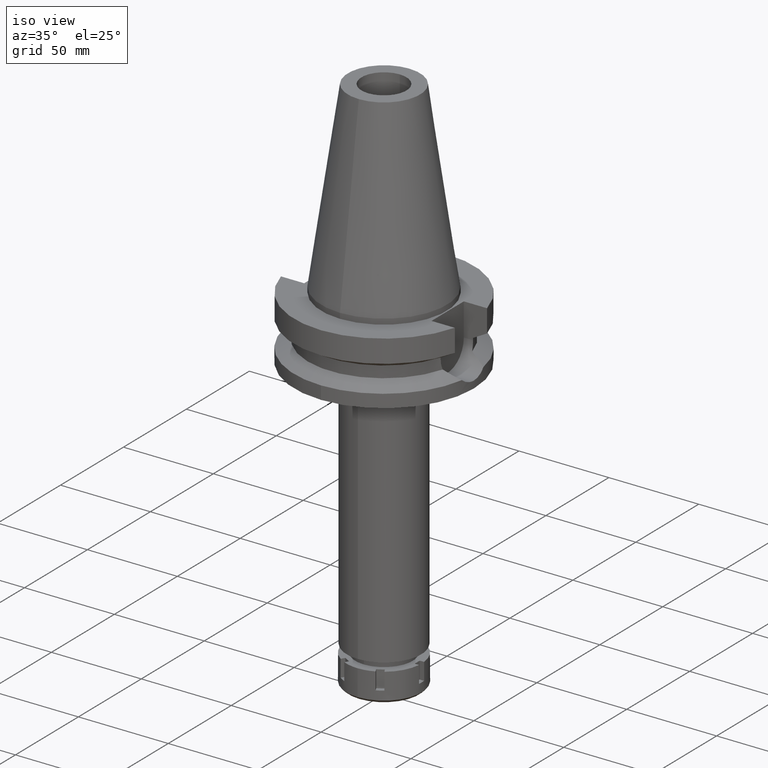
[diagram: clean part render]
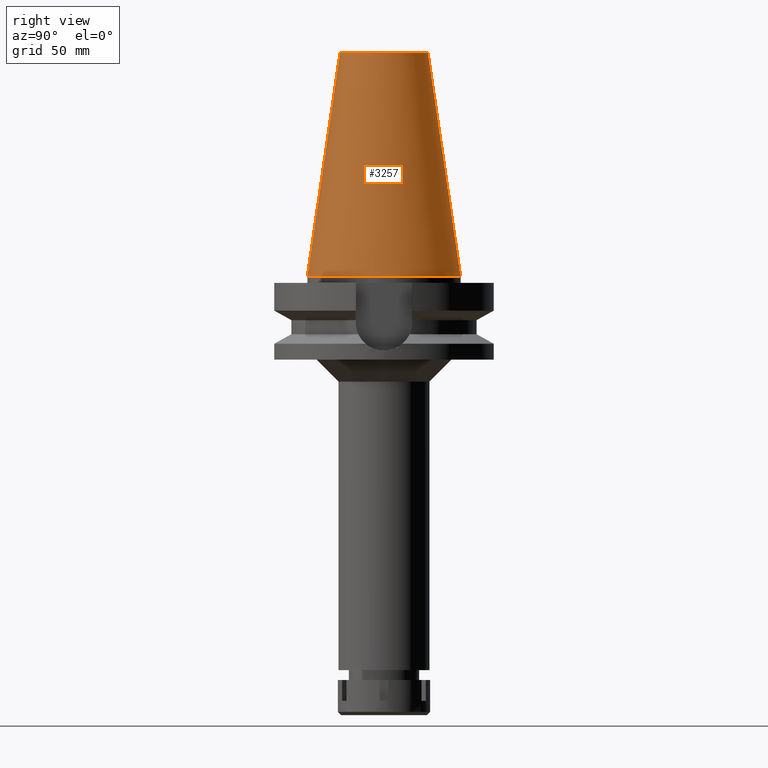
[diagram: tour spotlight — one face highlighted and labeled with its STEP entity id]
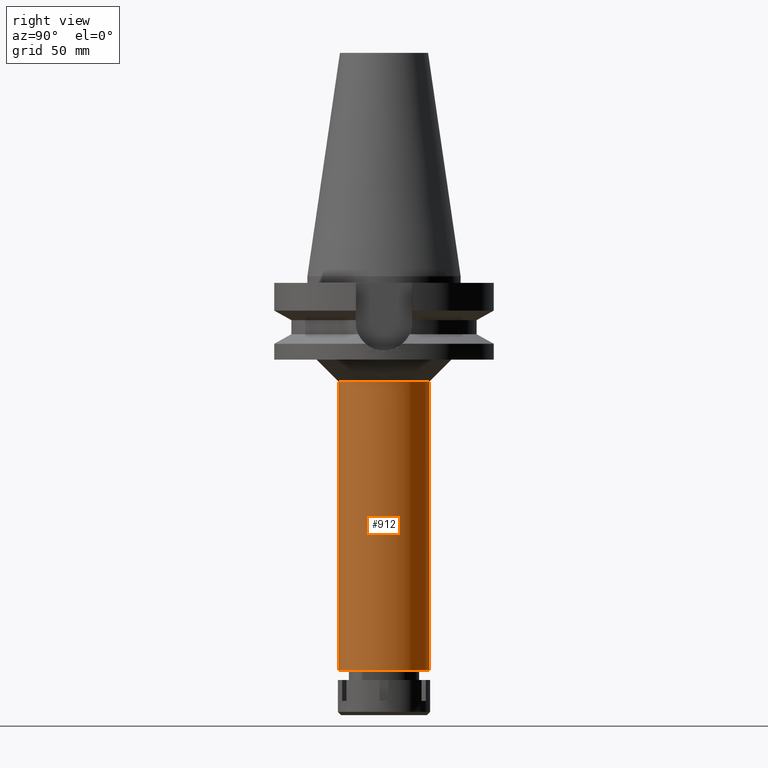
[diagram: tour spotlight — one face highlighted and labeled with its STEP entity id]
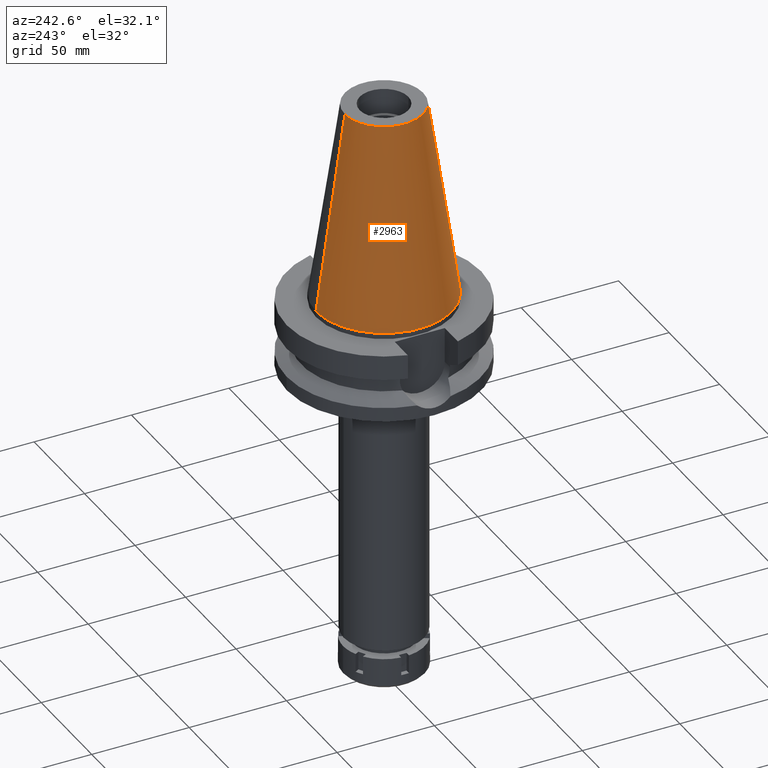
[diagram: tour spotlight — one face highlighted and labeled with its STEP entity id]
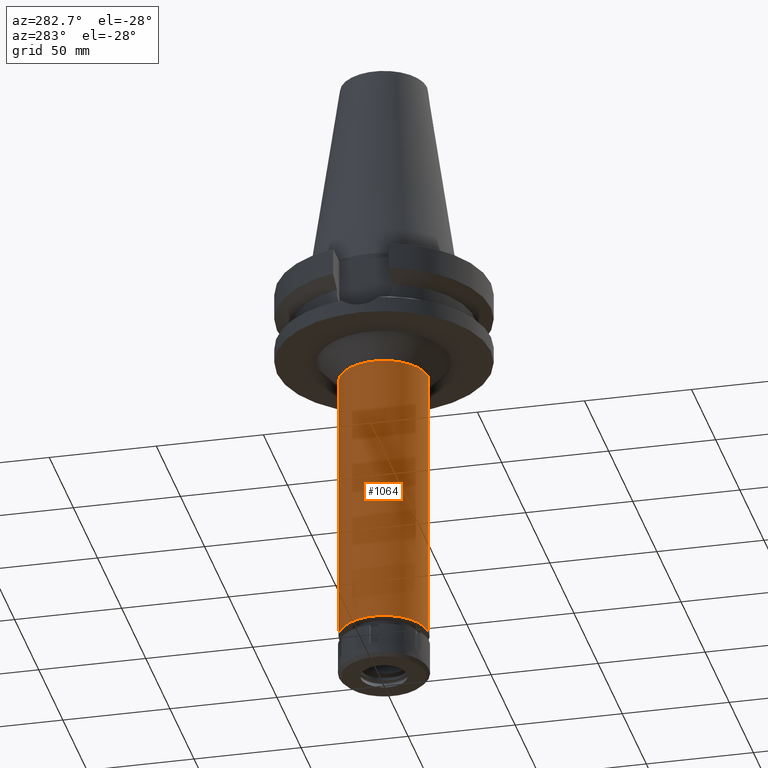
[diagram: tour spotlight — one face highlighted and labeled with its STEP entity id]
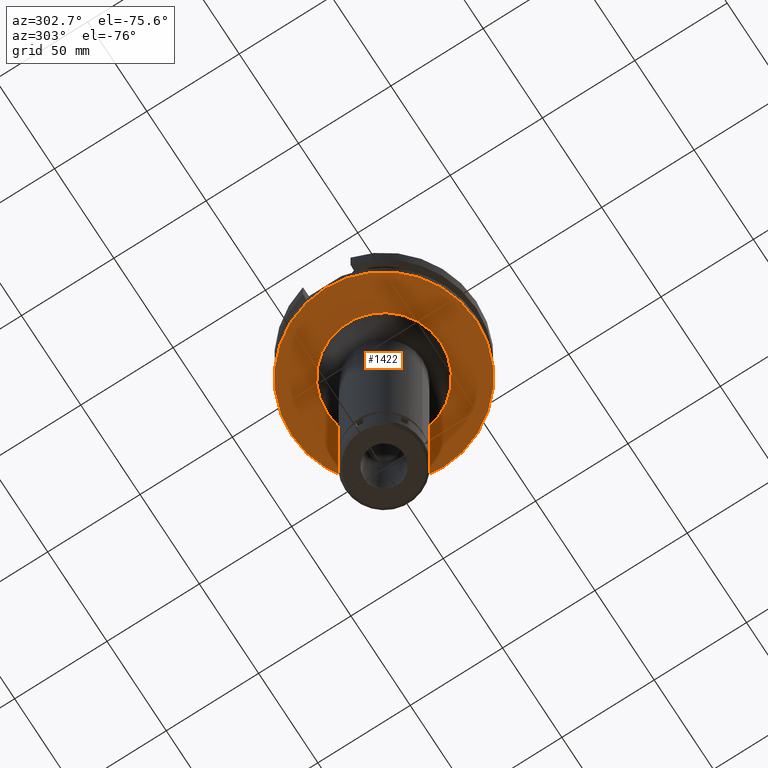
[diagram: tour spotlight — one face highlighted and labeled with its STEP entity id]
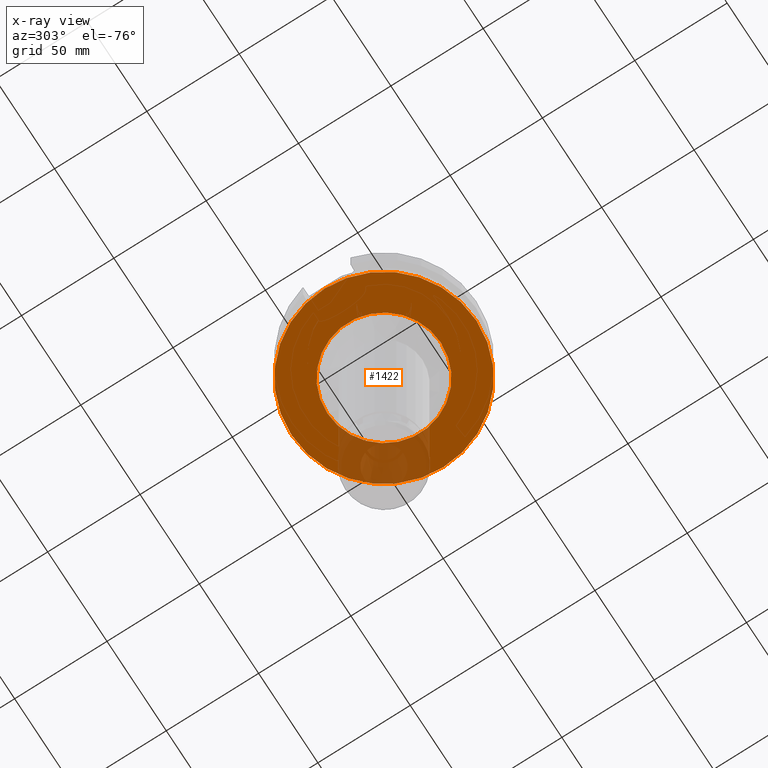
[diagram: x-ray of the same camera — body ghosted, this tour face saturated]
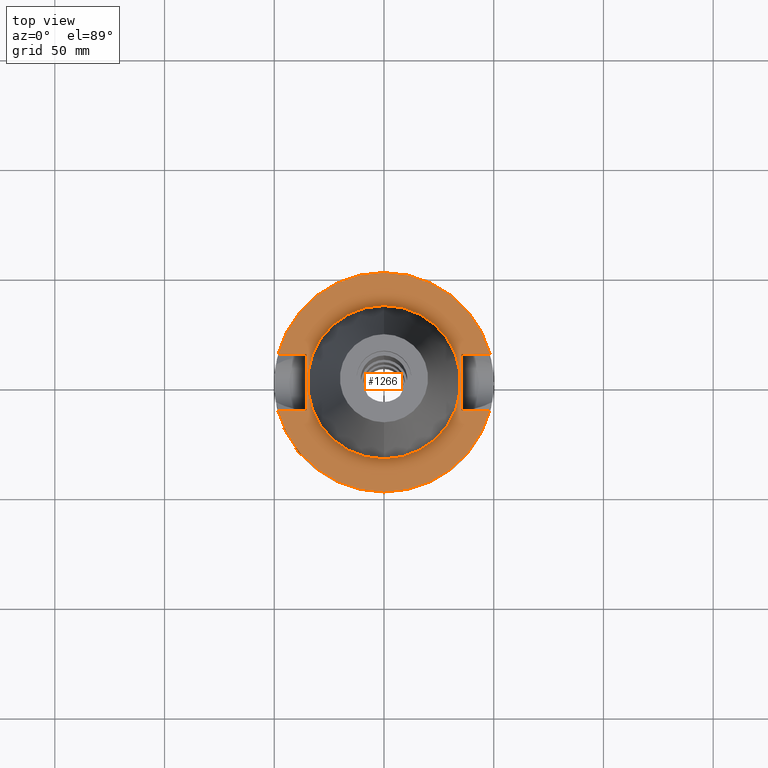
[diagram: tour spotlight — one face highlighted and labeled with its STEP entity id]
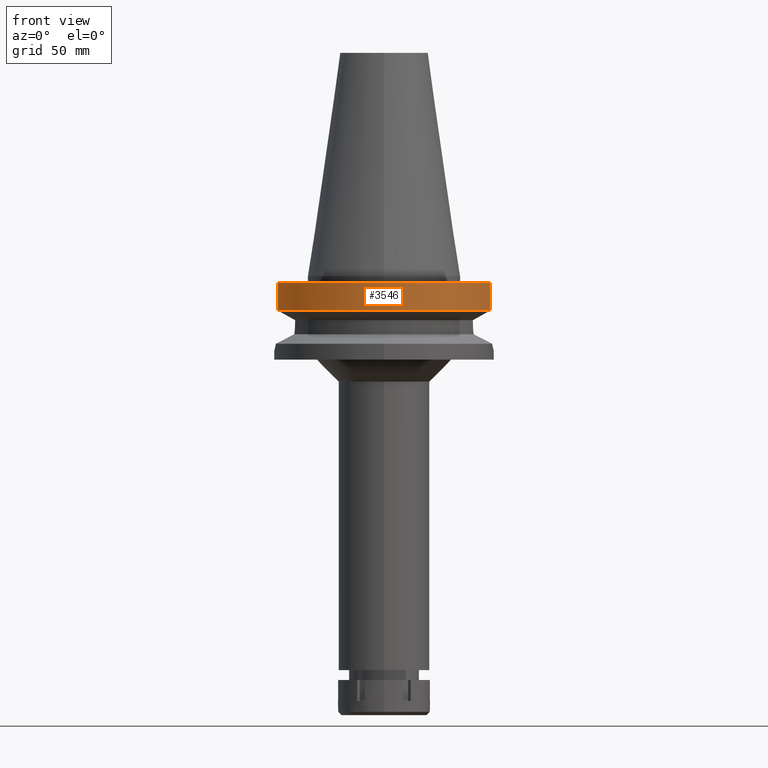
[diagram: tour spotlight — one face highlighted and labeled with its STEP entity id]
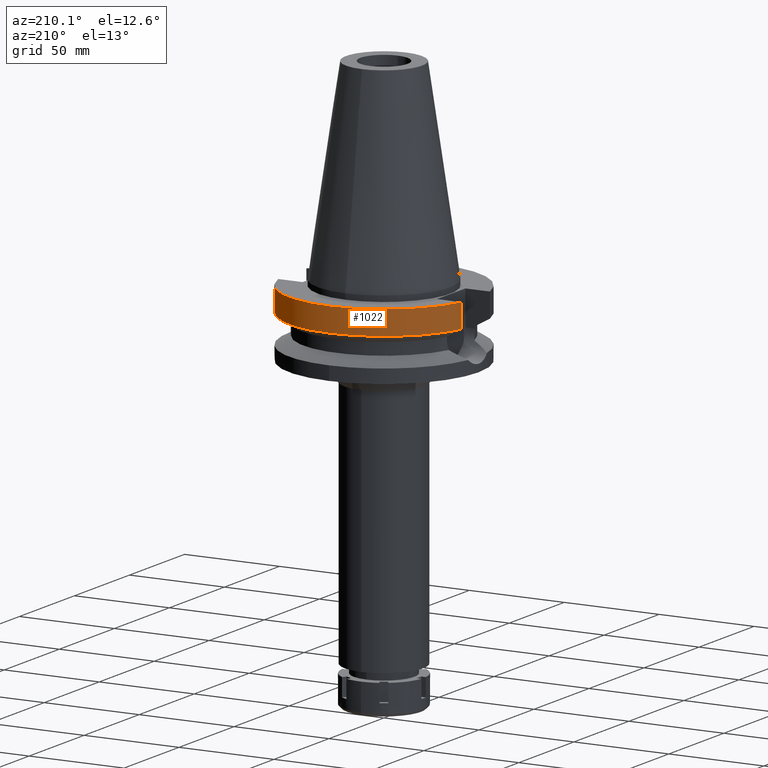
[diagram: tour spotlight — one face highlighted and labeled with its STEP entity id]
A machine part: a face-by-face anatomy tour. The part has 93 B-rep faces; the first image is the clean iso view, then the 8 largest visible faces are spotlighted one at a time (largest first), each with its STEP entity span.

Face 1 — right view, entity #3257. In plain terms, the highlighted conical surface has half-angle 8.297 deg.
Definition (entity closure, byte-faithful):
#375 = DIRECTION ( 'NONE',  ( 0.0000000000000000000, 1.000000000000000000, 0.0000000000000000000 ) ) ;
#429 = CARTESIAN_POINT ( 'NONE',  ( 0.0000000000000000000, -20.07942971896000017, 101.7999999999999972 ) ) ;
#564 = EDGE_CURVE ( 'NONE', #2641, #1976, #1144, .T. ) ;
#708 = CARTESIAN_POINT ( 'NONE',  ( 0.0000000000000000000, 20.07942971896000017, 101.7999999999999972 ) ) ;
#740 = VERTEX_POINT ( 'NONE', #1268 ) ;
#802 = CARTESIAN_POINT ( 'NONE',  ( 0.0000000000000000000, 20.07942971896000017, 101.7999999999999972 ) ) ;
#896 = ORIENTED_EDGE ( 'NONE', *, *, #1407, .F. ) ;
#1103 = ORIENTED_EDGE ( 'NONE', *, *, #564, .T. ) ;
#1134 = AXIS2_PLACEMENT_3D ( 'NONE', #3509, #1509, #375 ) ;
#1144 = CIRCLE ( 'NONE', #2562, 20.07942971896000017 ) ;
#1159 = EDGE_LOOP ( 'NONE', ( #1103, #2582, #896, #1174 ) ) ;
#1174 = ORIENTED_EDGE ( 'NONE', *, *, #2392, .F. ) ;
#1246 = DIRECTION ( 'NONE',  ( 0.0000000000000000000, -1.000000000000000000, 0.0000000000000000000 ) ) ;
#1268 = CARTESIAN_POINT ( 'NONE',  ( 0.0000000000000000000, -34.92499999999999716, 5.400124791776999712E-13 ) ) ;
#1301 = CARTESIAN_POINT ( 'NONE',  ( 0.0000000000000000000, 34.92499999999999716, 5.400124791776999712E-13 ) ) ;
#1407 = EDGE_CURVE ( 'NONE', #1888, #740, #2729, .T. ) ;
#1509 = DIRECTION ( 'NONE',  ( 0.0000000000000000000, 0.0000000000000000000, -1.000000000000000000 ) ) ;
#1735 = VECTOR ( 'NONE', #2684, 1000.000000000000114 ) ;
#1816 = DIRECTION ( 'NONE',  ( 0.0000000000000000000, 1.000000000000000000, 0.0000000000000000000 ) ) ;
#1854 = LINE ( 'NONE', #429, #1735 ) ;
#1863 = CARTESIAN_POINT ( 'NONE',  ( 0.0000000000000000000, 1.847992019912999597E-14, 50.89999999999999858 ) ) ;
#1888 = VERTEX_POINT ( 'NONE', #1301 ) ;
#1919 = VECTOR ( 'NONE', #3320, 1000.000000000000114 ) ;
#1928 = EDGE_CURVE ( 'NONE', #1976, #740, #1854, .T. ) ;
#1976 = VERTEX_POINT ( 'NONE', #3563 ) ;
#2245 = AXIS2_PLACEMENT_3D ( 'NONE', #1863, #3565, #1246 ) ;
#2392 = EDGE_CURVE ( 'NONE', #2641, #1888, #3597, .T. ) ;
#2562 = AXIS2_PLACEMENT_3D ( 'NONE', #2952, #2707, #1816 ) ;
#2582 = ORIENTED_EDGE ( 'NONE', *, *, #1928, .T. ) ;
#2596 = CONICAL_SURFACE ( 'NONE', #2245, 27.50221485948000222, 0.1448099680379422438 ) ;
#2641 = VERTEX_POINT ( 'NONE', #802 ) ;
#2684 = DIRECTION ( 'NONE',  ( 0.0000000000000000000, -0.1443043893538948075, -0.9895333461855641000 ) ) ;
#2707 = DIRECTION ( 'NONE',  ( 0.0000000000000000000, 0.0000000000000000000, -1.000000000000000000 ) ) ;
#2729 = CIRCLE ( 'NONE', #1134, 34.92499999999999716 ) ;
#2952 = CARTESIAN_POINT ( 'NONE',  ( 0.0000000000000000000, 1.847992019912999597E-14, 101.7999999999999972 ) ) ;
#2975 = FACE_OUTER_BOUND ( 'NONE', #1159, .T. ) ;
#3257 = ADVANCED_FACE ( 'NONE', ( #2975 ), #2596, .T. ) ;
#3320 = DIRECTION ( 'NONE',  ( 0.0000000000000000000, 0.1443043893538948075, -0.9895333461855641000 ) ) ;
#3509 = CARTESIAN_POINT ( 'NONE',  ( 0.0000000000000000000, 1.847992019912999597E-14, 3.979039320256999774E-13 ) ) ;
#3563 = CARTESIAN_POINT ( 'NONE',  ( 0.0000000000000000000, -20.07942971896000017, 101.7999999999999972 ) ) ;
#3565 = DIRECTION ( 'NONE',  ( 0.0000000000000000000, 0.0000000000000000000, -1.000000000000000000 ) ) ;
#3597 = LINE ( 'NONE', #708, #1919 ) ;

Face 2 — right view, entity #912. In plain terms, the highlighted cylindrical surface (partial cylindrical patch) has radius 20.75 mm, axis along (0, 0, -1).
Definition (entity closure, byte-faithful):
#128 = EDGE_LOOP ( 'NONE', ( #595, #258, #390, #2007 ) ) ;
#258 = ORIENTED_EDGE ( 'NONE', *, *, #3478, .T. ) ;
#390 = ORIENTED_EDGE ( 'NONE', *, *, #1744, .T. ) ;
#595 = ORIENTED_EDGE ( 'NONE', *, *, #660, .T. ) ;
#611 = CARTESIAN_POINT ( 'NONE',  ( 0.0000000000000000000, 20.75000000000000000, -48.00000000000000000 ) ) ;
#628 = DIRECTION ( 'NONE',  ( 0.0000000000000000000, 0.0000000000000000000, -1.000000000000000000 ) ) ;
#660 = EDGE_CURVE ( 'NONE', #3239, #2019, #2915, .T. ) ;
#809 = DIRECTION ( 'NONE',  ( 0.0000000000000000000, 0.0000000000000000000, 1.000000000000000000 ) ) ;
#904 = LINE ( 'NONE', #611, #1833 ) ;
#912 = ADVANCED_FACE ( 'NONE', ( #2899 ), #1275, .T. ) ;
#1029 = CIRCLE ( 'NONE', #2741, 20.75000000000000000 ) ;
#1065 = DIRECTION ( 'NONE',  ( 0.0000000000000000000, 1.000000000000000000, 0.0000000000000000000 ) ) ;
#1085 = LINE ( 'NONE', #2508, #1603 ) ;
#1275 = CYLINDRICAL_SURFACE ( 'NONE', #3504, 20.75000000000000000 ) ;
#1344 = DIRECTION ( 'NONE',  ( 0.0000000000000000000, 0.0000000000000000000, -1.000000000000000000 ) ) ;
#1511 = CARTESIAN_POINT ( 'NONE',  ( 0.0000000000000000000, 2.651237855473999832E-14, 116.4899999999999949 ) ) ;
#1603 = VECTOR ( 'NONE', #1344, 1000.000000000000000 ) ;
#1744 = EDGE_CURVE ( 'NONE', #2682, #3395, #1029, .T. ) ;
#1833 = VECTOR ( 'NONE', #628, 1000.000000000000000 ) ;
#1997 = DIRECTION ( 'NONE',  ( 0.0000000000000000000, -1.000000000000000000, 0.0000000000000000000 ) ) ;
#2007 = ORIENTED_EDGE ( 'NONE', *, *, #3183, .F. ) ;
#2019 = VERTEX_POINT ( 'NONE', #3129 ) ;
#2242 = CARTESIAN_POINT ( 'NONE',  ( 0.0000000000000000000, 0.0000000000000000000, -48.00000000000000000 ) ) ;
#2263 = CARTESIAN_POINT ( 'NONE',  ( 0.0000000000000000000, 2.651237855473999832E-14, -179.5000000000000000 ) ) ;
#2408 = CARTESIAN_POINT ( 'NONE',  ( 0.0000000000000000000, 20.75000000000000000, -179.5000000000000000 ) ) ;
#2508 = CARTESIAN_POINT ( 'NONE',  ( 0.0000000000000000000, -20.75000000000000000, -48.00000000000000000 ) ) ;
#2682 = VERTEX_POINT ( 'NONE', #3216 ) ;
#2741 = AXIS2_PLACEMENT_3D ( 'NONE', #2263, #809, #1997 ) ;
#2899 = FACE_OUTER_BOUND ( 'NONE', #128, .T. ) ;
#2915 = CIRCLE ( 'NONE', #3445, 20.75000000000000000 ) ;
#3090 = DIRECTION ( 'NONE',  ( 0.0000000000000000000, 0.0000000000000000000, -1.000000000000000000 ) ) ;
#3129 = CARTESIAN_POINT ( 'NONE',  ( 0.0000000000000000000, -20.75000000000000000, -48.00000000000000000 ) ) ;
#3183 = EDGE_CURVE ( 'NONE', #3239, #3395, #904, .T. ) ;
#3216 = CARTESIAN_POINT ( 'NONE',  ( 0.0000000000000000000, -20.75000000000000000, -179.5000000000000000 ) ) ;
#3239 = VERTEX_POINT ( 'NONE', #3482 ) ;
#3395 = VERTEX_POINT ( 'NONE', #2408 ) ;
#3445 = AXIS2_PLACEMENT_3D ( 'NONE', #2242, #3090, #1065 ) ;
#3455 = DIRECTION ( 'NONE',  ( 0.0000000000000000000, -1.000000000000000000, 0.0000000000000000000 ) ) ;
#3478 = EDGE_CURVE ( 'NONE', #2019, #2682, #1085, .T. ) ;
#3482 = CARTESIAN_POINT ( 'NONE',  ( 0.0000000000000000000, 20.75000000000000000, -48.00000000000000000 ) ) ;
#3488 = DIRECTION ( 'NONE',  ( 0.0000000000000000000, 0.0000000000000000000, -1.000000000000000000 ) ) ;
#3504 = AXIS2_PLACEMENT_3D ( 'NONE', #1511, #3488, #3455 ) ;

Face 3 — auxiliary view, entity #2963. In plain terms, the highlighted conical surface has half-angle 8.297 deg.
Definition (entity closure, byte-faithful):
#25 = DIRECTION ( 'NONE',  ( 0.0000000000000000000, 0.0000000000000000000, -1.000000000000000000 ) ) ;
#114 = DIRECTION ( 'NONE',  ( 0.0000000000000000000, -1.000000000000000000, 0.0000000000000000000 ) ) ;
#125 = EDGE_CURVE ( 'NONE', #1976, #2641, #234, .T. ) ;
#219 = EDGE_LOOP ( 'NONE', ( #1312, #2419, #877, #1736 ) ) ;
#234 = CIRCLE ( 'NONE', #2312, 20.07942971896000017 ) ;
#429 = CARTESIAN_POINT ( 'NONE',  ( 0.0000000000000000000, -20.07942971896000017, 101.7999999999999972 ) ) ;
#454 = AXIS2_PLACEMENT_3D ( 'NONE', #910, #2094, #114 ) ;
#708 = CARTESIAN_POINT ( 'NONE',  ( 0.0000000000000000000, 20.07942971896000017, 101.7999999999999972 ) ) ;
#740 = VERTEX_POINT ( 'NONE', #1268 ) ;
#802 = CARTESIAN_POINT ( 'NONE',  ( 0.0000000000000000000, 20.07942971896000017, 101.7999999999999972 ) ) ;
#877 = ORIENTED_EDGE ( 'NONE', *, *, #125, .T. ) ;
#910 = CARTESIAN_POINT ( 'NONE',  ( 0.0000000000000000000, 1.847992019912999597E-14, 3.979039320256999774E-13 ) ) ;
#938 = CARTESIAN_POINT ( 'NONE',  ( 0.0000000000000000000, 1.847992019912999597E-14, 101.7999999999999972 ) ) ;
#1071 = DIRECTION ( 'NONE',  ( 0.0000000000000000000, -1.000000000000000000, 0.0000000000000000000 ) ) ;
#1184 = AXIS2_PLACEMENT_3D ( 'NONE', #1276, #3529, #1071 ) ;
#1268 = CARTESIAN_POINT ( 'NONE',  ( 0.0000000000000000000, -34.92499999999999716, 5.400124791776999712E-13 ) ) ;
#1276 = CARTESIAN_POINT ( 'NONE',  ( 0.0000000000000000000, 1.847992019912999597E-14, 50.89999999999999858 ) ) ;
#1301 = CARTESIAN_POINT ( 'NONE',  ( 0.0000000000000000000, 34.92499999999999716, 5.400124791776999712E-13 ) ) ;
#1312 = ORIENTED_EDGE ( 'NONE', *, *, #2826, .F. ) ;
#1735 = VECTOR ( 'NONE', #2684, 1000.000000000000114 ) ;
#1736 = ORIENTED_EDGE ( 'NONE', *, *, #2392, .T. ) ;
#1854 = LINE ( 'NONE', #429, #1735 ) ;
#1869 = FACE_OUTER_BOUND ( 'NONE', #219, .T. ) ;
#1888 = VERTEX_POINT ( 'NONE', #1301 ) ;
#1919 = VECTOR ( 'NONE', #3320, 1000.000000000000114 ) ;
#1928 = EDGE_CURVE ( 'NONE', #1976, #740, #1854, .T. ) ;
#1976 = VERTEX_POINT ( 'NONE', #3563 ) ;
#2094 = DIRECTION ( 'NONE',  ( 0.0000000000000000000, 0.0000000000000000000, -1.000000000000000000 ) ) ;
#2188 = CIRCLE ( 'NONE', #454, 34.92499999999999716 ) ;
#2312 = AXIS2_PLACEMENT_3D ( 'NONE', #938, #25, #2646 ) ;
#2392 = EDGE_CURVE ( 'NONE', #2641, #1888, #3597, .T. ) ;
#2419 = ORIENTED_EDGE ( 'NONE', *, *, #1928, .F. ) ;
#2641 = VERTEX_POINT ( 'NONE', #802 ) ;
#2646 = DIRECTION ( 'NONE',  ( 0.0000000000000000000, -1.000000000000000000, 0.0000000000000000000 ) ) ;
#2684 = DIRECTION ( 'NONE',  ( 0.0000000000000000000, -0.1443043893538948075, -0.9895333461855641000 ) ) ;
#2781 = CONICAL_SURFACE ( 'NONE', #1184, 27.50221485948000222, 0.1448099680379422438 ) ;
#2826 = EDGE_CURVE ( 'NONE', #740, #1888, #2188, .T. ) ;
#2963 = ADVANCED_FACE ( 'NONE', ( #1869 ), #2781, .T. ) ;
#3320 = DIRECTION ( 'NONE',  ( 0.0000000000000000000, 0.1443043893538948075, -0.9895333461855641000 ) ) ;
#3529 = DIRECTION ( 'NONE',  ( 0.0000000000000000000, 0.0000000000000000000, -1.000000000000000000 ) ) ;
#3563 = CARTESIAN_POINT ( 'NONE',  ( 0.0000000000000000000, -20.07942971896000017, 101.7999999999999972 ) ) ;
#3597 = LINE ( 'NONE', #708, #1919 ) ;

Face 4 — auxiliary view, entity #1064. In plain terms, the highlighted cylindrical surface (partial cylindrical patch) has radius 20.75 mm, axis along (0, 0, -1).
Definition (entity closure, byte-faithful):
#96 = EDGE_CURVE ( 'NONE', #3395, #2682, #1087, .T. ) ;
#141 = ORIENTED_EDGE ( 'NONE', *, *, #3183, .T. ) ;
#151 = DIRECTION ( 'NONE',  ( 0.0000000000000000000, 0.0000000000000000000, -1.000000000000000000 ) ) ;
#171 = CIRCLE ( 'NONE', #768, 20.75000000000000000 ) ;
#229 = EDGE_CURVE ( 'NONE', #2019, #3239, #171, .T. ) ;
#601 = EDGE_LOOP ( 'NONE', ( #1954, #1912, #2711, #141 ) ) ;
#611 = CARTESIAN_POINT ( 'NONE',  ( 0.0000000000000000000, 20.75000000000000000, -48.00000000000000000 ) ) ;
#628 = DIRECTION ( 'NONE',  ( 0.0000000000000000000, 0.0000000000000000000, -1.000000000000000000 ) ) ;
#724 = CARTESIAN_POINT ( 'NONE',  ( 0.0000000000000000000, 2.651237855473999832E-14, 116.4899999999999949 ) ) ;
#768 = AXIS2_PLACEMENT_3D ( 'NONE', #3020, #3542, #2192 ) ;
#904 = LINE ( 'NONE', #611, #1833 ) ;
#1064 = ADVANCED_FACE ( 'NONE', ( #3297 ), #2197, .T. ) ;
#1085 = LINE ( 'NONE', #2508, #1603 ) ;
#1087 = CIRCLE ( 'NONE', #2254, 20.75000000000000000 ) ;
#1344 = DIRECTION ( 'NONE',  ( 0.0000000000000000000, 0.0000000000000000000, -1.000000000000000000 ) ) ;
#1603 = VECTOR ( 'NONE', #1344, 1000.000000000000000 ) ;
#1668 = AXIS2_PLACEMENT_3D ( 'NONE', #724, #151, #1868 ) ;
#1833 = VECTOR ( 'NONE', #628, 1000.000000000000000 ) ;
#1868 = DIRECTION ( 'NONE',  ( 0.0000000000000000000, -1.000000000000000000, 0.0000000000000000000 ) ) ;
#1912 = ORIENTED_EDGE ( 'NONE', *, *, #3478, .F. ) ;
#1954 = ORIENTED_EDGE ( 'NONE', *, *, #96, .T. ) ;
#2019 = VERTEX_POINT ( 'NONE', #3129 ) ;
#2192 = DIRECTION ( 'NONE',  ( 0.0000000000000000000, -1.000000000000000000, 0.0000000000000000000 ) ) ;
#2197 = CYLINDRICAL_SURFACE ( 'NONE', #1668, 20.75000000000000000 ) ;
#2254 = AXIS2_PLACEMENT_3D ( 'NONE', #2580, #2295, #2592 ) ;
#2295 = DIRECTION ( 'NONE',  ( 0.0000000000000000000, 0.0000000000000000000, 1.000000000000000000 ) ) ;
#2408 = CARTESIAN_POINT ( 'NONE',  ( 0.0000000000000000000, 20.75000000000000000, -179.5000000000000000 ) ) ;
#2508 = CARTESIAN_POINT ( 'NONE',  ( 0.0000000000000000000, -20.75000000000000000, -48.00000000000000000 ) ) ;
#2580 = CARTESIAN_POINT ( 'NONE',  ( 0.0000000000000000000, 2.651237855473999832E-14, -179.5000000000000000 ) ) ;
#2592 = DIRECTION ( 'NONE',  ( 0.0000000000000000000, 1.000000000000000000, 0.0000000000000000000 ) ) ;
#2682 = VERTEX_POINT ( 'NONE', #3216 ) ;
#2711 = ORIENTED_EDGE ( 'NONE', *, *, #229, .T. ) ;
#3020 = CARTESIAN_POINT ( 'NONE',  ( 0.0000000000000000000, 0.0000000000000000000, -48.00000000000000000 ) ) ;
#3129 = CARTESIAN_POINT ( 'NONE',  ( 0.0000000000000000000, -20.75000000000000000, -48.00000000000000000 ) ) ;
#3183 = EDGE_CURVE ( 'NONE', #3239, #3395, #904, .T. ) ;
#3216 = CARTESIAN_POINT ( 'NONE',  ( 0.0000000000000000000, -20.75000000000000000, -179.5000000000000000 ) ) ;
#3239 = VERTEX_POINT ( 'NONE', #3482 ) ;
#3297 = FACE_OUTER_BOUND ( 'NONE', #601, .T. ) ;
#3395 = VERTEX_POINT ( 'NONE', #2408 ) ;
#3478 = EDGE_CURVE ( 'NONE', #2019, #2682, #1085, .T. ) ;
#3482 = CARTESIAN_POINT ( 'NONE',  ( 0.0000000000000000000, 20.75000000000000000, -48.00000000000000000 ) ) ;
#3542 = DIRECTION ( 'NONE',  ( 0.0000000000000000000, 0.0000000000000000000, -1.000000000000000000 ) ) ;

Face 5 — auxiliary view, entity #1422. An x-ray twin of the same camera follows (body ghosted, this face saturated) — the face is partly hidden behind the body. In plain terms, the highlighted planar face has unit normal (0, 0, -1).
Definition (entity closure, byte-faithful):
#49 = FACE_OUTER_BOUND ( 'NONE', #1701, .T. ) ;
#334 = EDGE_CURVE ( 'NONE', #3426, #3459, #2911, .T. ) ;
#523 = CIRCLE ( 'NONE', #1955, 50.00000000000000000 ) ;
#582 = ORIENTED_EDGE ( 'NONE', *, *, #2558, .F. ) ;
#588 = DIRECTION ( 'NONE',  ( 0.0000000000000000000, -1.000000000000000000, 0.0000000000000000000 ) ) ;
#659 = ORIENTED_EDGE ( 'NONE', *, *, #2191, .F. ) ;
#887 = VERTEX_POINT ( 'NONE', #1548 ) ;
#927 = DIRECTION ( 'NONE',  ( 0.0000000000000000000, 0.0000000000000000000, 1.000000000000000000 ) ) ;
#985 = DIRECTION ( 'NONE',  ( 0.0000000000000000000, -1.000000000000000000, 0.0000000000000000000 ) ) ;
#1204 = AXIS2_PLACEMENT_3D ( 'NONE', #2636, #927, #1236 ) ;
#1214 = FACE_BOUND ( 'NONE', #1948, .T. ) ;
#1236 = DIRECTION ( 'NONE',  ( 0.0000000000000000000, 1.000000000000000000, 0.0000000000000000000 ) ) ;
#1326 = CIRCLE ( 'NONE', #1204, 50.00000000000000000 ) ;
#1422 = ADVANCED_FACE ( 'NONE', ( #49, #1214 ), #2090, .T. ) ;
#1467 = CARTESIAN_POINT ( 'NONE',  ( 0.0000000000000000000, 50.00000000000000000, -38.00000000000000000 ) ) ;
#1548 = CARTESIAN_POINT ( 'NONE',  ( 0.0000000000000000000, -50.00000000000000000, -38.00000000000000000 ) ) ;
#1621 = DIRECTION ( 'NONE',  ( 0.0000000000000000000, -1.000000000000000000, 0.0000000000000000000 ) ) ;
#1637 = CARTESIAN_POINT ( 'NONE',  ( 0.0000000000000000000, -30.75000000000000000, -38.00000000000000000 ) ) ;
#1655 = CARTESIAN_POINT ( 'NONE',  ( 0.0000000000000000000, 30.75000000000000000, -38.00000000000000000 ) ) ;
#1701 = EDGE_LOOP ( 'NONE', ( #659, #3562 ) ) ;
#1918 = DIRECTION ( 'NONE',  ( 0.0000000000000000000, 0.0000000000000000000, 1.000000000000000000 ) ) ;
#1948 = EDGE_LOOP ( 'NONE', ( #3275, #582 ) ) ;
#1955 = AXIS2_PLACEMENT_3D ( 'NONE', #2172, #1918, #1621 ) ;
#2090 = PLANE ( 'NONE',  #3332 ) ;
#2172 = CARTESIAN_POINT ( 'NONE',  ( 0.0000000000000000000, 2.651237855473999832E-14, -38.00000000000000000 ) ) ;
#2191 = EDGE_CURVE ( 'NONE', #3097, #887, #1326, .T. ) ;
#2236 = DIRECTION ( 'NONE',  ( 0.0000000000000000000, 0.0000000000000000000, -1.000000000000000000 ) ) ;
#2332 = CARTESIAN_POINT ( 'NONE',  ( 0.0000000000000000000, 0.0000000000000000000, -38.00000000000000000 ) ) ;
#2435 = DIRECTION ( 'NONE',  ( 0.0000000000000000000, 0.0000000000000000000, -1.000000000000000000 ) ) ;
#2545 = DIRECTION ( 'NONE',  ( 0.0000000000000000000, 0.0000000000000000000, -1.000000000000000000 ) ) ;
#2558 = EDGE_CURVE ( 'NONE', #3459, #3426, #3637, .T. ) ;
#2636 = CARTESIAN_POINT ( 'NONE',  ( 0.0000000000000000000, 2.651237855473999832E-14, -38.00000000000000000 ) ) ;
#2911 = CIRCLE ( 'NONE', #3625, 30.75000000000000000 ) ;
#3097 = VERTEX_POINT ( 'NONE', #1467 ) ;
#3098 = CARTESIAN_POINT ( 'NONE',  ( 0.0000000000000000000, 0.0000000000000000000, -38.00000000000000000 ) ) ;
#3275 = ORIENTED_EDGE ( 'NONE', *, *, #334, .F. ) ;
#3332 = AXIS2_PLACEMENT_3D ( 'NONE', #2332, #2435, #985 ) ;
#3414 = DIRECTION ( 'NONE',  ( 0.0000000000000000000, 1.000000000000000000, 0.0000000000000000000 ) ) ;
#3426 = VERTEX_POINT ( 'NONE', #1655 ) ;
#3448 = CARTESIAN_POINT ( 'NONE',  ( 0.0000000000000000000, 0.0000000000000000000, -38.00000000000000000 ) ) ;
#3459 = VERTEX_POINT ( 'NONE', #1637 ) ;
#3510 = AXIS2_PLACEMENT_3D ( 'NONE', #3098, #2236, #588 ) ;
#3555 = EDGE_CURVE ( 'NONE', #887, #3097, #523, .T. ) ;
#3562 = ORIENTED_EDGE ( 'NONE', *, *, #3555, .F. ) ;
#3625 = AXIS2_PLACEMENT_3D ( 'NONE', #3448, #2545, #3414 ) ;
#3637 = CIRCLE ( 'NONE', #3510, 30.75000000000000000 ) ;

Face 6 — top view, entity #1266. In plain terms, the highlighted planar face has unit normal (0, 0, -1).
Definition (entity closure, byte-faithful):
#92 = VERTEX_POINT ( 'NONE', #2936 ) ;
#150 = AXIS2_PLACEMENT_3D ( 'NONE', #2476, #1905, #3608 ) ;
#172 = CARTESIAN_POINT ( 'NONE',  ( -35.39999999999999858, -12.84999999999999964, -3.000000000000000000 ) ) ;
#182 = ORIENTED_EDGE ( 'NONE', *, *, #184, .F. ) ;
#184 = EDGE_CURVE ( 'NONE', #3431, #92, #3273, .T. ) ;
#256 = EDGE_CURVE ( 'NONE', #92, #971, #720, .T. ) ;
#263 = VERTEX_POINT ( 'NONE', #3310 ) ;
#328 = CARTESIAN_POINT ( 'NONE',  ( 0.0000000000000000000, 2.651237855473999832E-14, -3.000000000000000000 ) ) ;
#332 = CARTESIAN_POINT ( 'NONE',  ( 35.39999999999999858, 12.84999999999999964, -3.000000000000000000 ) ) ;
#333 = VECTOR ( 'NONE', #1406, 1000.000000000000000 ) ;
#411 = VECTOR ( 'NONE', #1330, 1000.000000000000000 ) ;
#443 = CARTESIAN_POINT ( 'NONE',  ( 35.39999999999999858, -12.84999999999999964, -3.000000000000000000 ) ) ;
#467 = VECTOR ( 'NONE', #2955, 1000.000000000000000 ) ;
#538 = CIRCLE ( 'NONE', #3337, 34.92499999999999716 ) ;
#553 = PLANE ( 'NONE',  #1610 ) ;
#720 = LINE ( 'NONE', #2158, #3389 ) ;
#833 = DIRECTION ( 'NONE',  ( 0.0000000000000000000, 0.0000000000000000000, -1.000000000000000000 ) ) ;
#839 = DIRECTION ( 'NONE',  ( 0.0000000000000000000, -1.000000000000000000, 0.0000000000000000000 ) ) ;
#862 = EDGE_CURVE ( 'NONE', #263, #2698, #538, .T. ) ;
#872 = ORIENTED_EDGE ( 'NONE', *, *, #3648, .F. ) ;
#879 = CIRCLE ( 'NONE', #1428, 50.00000000000000000 ) ;
#913 = VERTEX_POINT ( 'NONE', #2397 ) ;
#923 = DIRECTION ( 'NONE',  ( 0.0000000000000000000, 0.0000000000000000000, 1.000000000000000000 ) ) ;
#971 = VERTEX_POINT ( 'NONE', #2597 ) ;
#1047 = DIRECTION ( 'NONE',  ( -1.000000000000000000, 0.0000000000000000000, 0.0000000000000000000 ) ) ;
#1094 = CIRCLE ( 'NONE', #3153, 34.92499999999999716 ) ;
#1099 = EDGE_LOOP ( 'NONE', ( #1416, #1885 ) ) ;
#1121 = CARTESIAN_POINT ( 'NONE',  ( 0.0000000000000000000, 1.187907395172999884E-14, -3.000000000000000000 ) ) ;
#1124 = CIRCLE ( 'NONE', #150, 50.00000000000000000 ) ;
#1185 = DIRECTION ( 'NONE',  ( 0.0000000000000000000, -1.000000000000000000, 0.0000000000000000000 ) ) ;
#1241 = VERTEX_POINT ( 'NONE', #3077 ) ;
#1266 = ADVANCED_FACE ( 'NONE', ( #3644, #2529 ), #553, .F. ) ;
#1319 = EDGE_CURVE ( 'NONE', #3431, #3417, #3188, .T. ) ;
#1330 = DIRECTION ( 'NONE',  ( 0.0000000000000000000, 1.000000000000000000, 0.0000000000000000000 ) ) ;
#1357 = CARTESIAN_POINT ( 'NONE',  ( -48.32057015392000210, -12.84999999999999964, -3.000000000000000000 ) ) ;
#1406 = DIRECTION ( 'NONE',  ( 0.0000000000000000000, -1.000000000000000000, 0.0000000000000000000 ) ) ;
#1416 = ORIENTED_EDGE ( 'NONE', *, *, #862, .F. ) ;
#1428 = AXIS2_PLACEMENT_3D ( 'NONE', #328, #1994, #1185 ) ;
#1610 = AXIS2_PLACEMENT_3D ( 'NONE', #1121, #833, #1973 ) ;
#1762 = LINE ( 'NONE', #332, #333 ) ;
#1767 = ORIENTED_EDGE ( 'NONE', *, *, #3207, .F. ) ;
#1827 = CARTESIAN_POINT ( 'NONE',  ( 48.32057015392000210, -12.84999999999999964, -3.000000000000000000 ) ) ;
#1858 = VECTOR ( 'NONE', #2991, 1000.000000000000000 ) ;
#1885 = ORIENTED_EDGE ( 'NONE', *, *, #2513, .F. ) ;
#1905 = DIRECTION ( 'NONE',  ( 0.0000000000000000000, 0.0000000000000000000, -1.000000000000000000 ) ) ;
#1973 = DIRECTION ( 'NONE',  ( 0.0000000000000000000, -1.000000000000000000, 0.0000000000000000000 ) ) ;
#1983 = VERTEX_POINT ( 'NONE', #3361 ) ;
#1994 = DIRECTION ( 'NONE',  ( 0.0000000000000000000, 0.0000000000000000000, -1.000000000000000000 ) ) ;
#2046 = CARTESIAN_POINT ( 'NONE',  ( -35.39999999999999858, -12.84999999999999964, -3.000000000000000000 ) ) ;
#2058 = ORIENTED_EDGE ( 'NONE', *, *, #2453, .F. ) ;
#2158 = CARTESIAN_POINT ( 'NONE',  ( -35.39999999999999858, 12.84999999999999964, -3.000000000000000000 ) ) ;
#2180 = VERTEX_POINT ( 'NONE', #1827 ) ;
#2258 = DIRECTION ( 'NONE',  ( 1.000000000000000000, 0.0000000000000000000, 0.0000000000000000000 ) ) ;
#2397 = CARTESIAN_POINT ( 'NONE',  ( 48.32057015392000210, 12.84999999999999964, -3.000000000000000000 ) ) ;
#2453 = EDGE_CURVE ( 'NONE', #1983, #2180, #3010, .T. ) ;
#2476 = CARTESIAN_POINT ( 'NONE',  ( 0.0000000000000000000, 2.651237855473999832E-14, -3.000000000000000000 ) ) ;
#2513 = EDGE_CURVE ( 'NONE', #2698, #263, #1094, .T. ) ;
#2529 = FACE_BOUND ( 'NONE', #1099, .T. ) ;
#2584 = CARTESIAN_POINT ( 'NONE',  ( 0.0000000000000000000, 2.651237855473999832E-14, -3.000000000000000000 ) ) ;
#2597 = CARTESIAN_POINT ( 'NONE',  ( -48.32057015392000210, 12.84999999999999964, -3.000000000000000000 ) ) ;
#2698 = VERTEX_POINT ( 'NONE', #2959 ) ;
#2821 = LINE ( 'NONE', #3165, #3381 ) ;
#2830 = DIRECTION ( 'NONE',  ( 0.0000000000000000000, 0.0000000000000000000, 1.000000000000000000 ) ) ;
#2842 = ORIENTED_EDGE ( 'NONE', *, *, #2920, .F. ) ;
#2920 = EDGE_CURVE ( 'NONE', #971, #913, #1124, .T. ) ;
#2936 = CARTESIAN_POINT ( 'NONE',  ( -35.39999999999999858, 12.84999999999999964, -3.000000000000000000 ) ) ;
#2955 = DIRECTION ( 'NONE',  ( -1.000000000000000000, 0.0000000000000000000, 0.0000000000000000000 ) ) ;
#2959 = CARTESIAN_POINT ( 'NONE',  ( 0.0000000000000000000, -34.92499999999999716, -3.000000000000000000 ) ) ;
#2991 = DIRECTION ( 'NONE',  ( 1.000000000000000000, 0.0000000000000000000, 0.0000000000000000000 ) ) ;
#3010 = LINE ( 'NONE', #443, #1858 ) ;
#3033 = CARTESIAN_POINT ( 'NONE',  ( -35.39999999999999858, -12.84999999999999964, -3.000000000000000000 ) ) ;
#3077 = CARTESIAN_POINT ( 'NONE',  ( 35.39999999999999858, 12.84999999999999964, -3.000000000000000000 ) ) ;
#3105 = ORIENTED_EDGE ( 'NONE', *, *, #256, .F. ) ;
#3153 = AXIS2_PLACEMENT_3D ( 'NONE', #2584, #2830, #839 ) ;
#3159 = DIRECTION ( 'NONE',  ( 0.0000000000000000000, 1.000000000000000000, 0.0000000000000000000 ) ) ;
#3165 = CARTESIAN_POINT ( 'NONE',  ( 35.39999999999999858, 12.84999999999999964, -3.000000000000000000 ) ) ;
#3188 = LINE ( 'NONE', #2046, #467 ) ;
#3207 = EDGE_CURVE ( 'NONE', #1241, #1983, #1762, .T. ) ;
#3218 = EDGE_LOOP ( 'NONE', ( #3442, #872, #2058, #1767, #3610, #2842, #3105, #182 ) ) ;
#3273 = LINE ( 'NONE', #172, #411 ) ;
#3310 = CARTESIAN_POINT ( 'NONE',  ( 0.0000000000000000000, 34.92499999999999716, -3.000000000000000000 ) ) ;
#3337 = AXIS2_PLACEMENT_3D ( 'NONE', #3512, #923, #3159 ) ;
#3361 = CARTESIAN_POINT ( 'NONE',  ( 35.39999999999999858, -12.84999999999999964, -3.000000000000000000 ) ) ;
#3381 = VECTOR ( 'NONE', #2258, 1000.000000000000000 ) ;
#3389 = VECTOR ( 'NONE', #1047, 1000.000000000000000 ) ;
#3417 = VERTEX_POINT ( 'NONE', #1357 ) ;
#3431 = VERTEX_POINT ( 'NONE', #3033 ) ;
#3442 = ORIENTED_EDGE ( 'NONE', *, *, #1319, .T. ) ;
#3512 = CARTESIAN_POINT ( 'NONE',  ( 0.0000000000000000000, 2.651237855473999832E-14, -3.000000000000000000 ) ) ;
#3608 = DIRECTION ( 'NONE',  ( 0.0000000000000000000, 1.000000000000000000, 0.0000000000000000000 ) ) ;
#3610 = ORIENTED_EDGE ( 'NONE', *, *, #3669, .T. ) ;
#3644 = FACE_OUTER_BOUND ( 'NONE', #3218, .T. ) ;
#3648 = EDGE_CURVE ( 'NONE', #2180, #3417, #879, .T. ) ;
#3669 = EDGE_CURVE ( 'NONE', #1241, #913, #2821, .T. ) ;

Face 7 — front view, entity #3546. In plain terms, the highlighted cylindrical surface (partial cylindrical patch) has radius 50 mm, axis along (0, 0, -1).
Definition (entity closure, byte-faithful):
#120 = ORIENTED_EDGE ( 'NONE', *, *, #3648, .T. ) ;
#279 = EDGE_LOOP ( 'NONE', ( #3039, #2861, #633, #120 ) ) ;
#315 = LINE ( 'NONE', #2542, #1544 ) ;
#328 = CARTESIAN_POINT ( 'NONE',  ( 0.0000000000000000000, 2.651237855473999832E-14, -3.000000000000000000 ) ) ;
#424 = CARTESIAN_POINT ( 'NONE',  ( -48.32056912814000071, -12.85000385727999905, -15.66265768250999990 ) ) ;
#450 = FACE_OUTER_BOUND ( 'NONE', #279, .T. ) ;
#518 = CARTESIAN_POINT ( 'NONE',  ( 0.0000000000000000000, 1.006319759053999930E-14, -15.66269223573000069 ) ) ;
#580 = DIRECTION ( 'NONE',  ( -8.103519278860602309E-08, -3.047209459813850567E-07, -0.9999999999999503730 ) ) ;
#633 = ORIENTED_EDGE ( 'NONE', *, *, #1219, .F. ) ;
#843 = DIRECTION ( 'NONE',  ( -8.100800697240604101E-08, 3.046187202870850882E-07, 0.9999999999999503730 ) ) ;
#879 = CIRCLE ( 'NONE', #1428, 50.00000000000000000 ) ;
#1045 = DIRECTION ( 'NONE',  ( 0.0000000000000000000, 0.0000000000000000000, -1.000000000000000000 ) ) ;
#1185 = DIRECTION ( 'NONE',  ( 0.0000000000000000000, -1.000000000000000000, 0.0000000000000000000 ) ) ;
#1190 = VECTOR ( 'NONE', #580, 999.9999999999998863 ) ;
#1219 = EDGE_CURVE ( 'NONE', #2180, #1738, #1405, .T. ) ;
#1357 = CARTESIAN_POINT ( 'NONE',  ( -48.32057015392000210, -12.84999999999999964, -3.000000000000000000 ) ) ;
#1405 = LINE ( 'NONE', #1937, #1190 ) ;
#1418 = CARTESIAN_POINT ( 'NONE',  ( 48.32057015392000210, -12.84999999999999964, -15.66269223573000069 ) ) ;
#1428 = AXIS2_PLACEMENT_3D ( 'NONE', #328, #1994, #1185 ) ;
#1544 = VECTOR ( 'NONE', #843, 1000.000000000000114 ) ;
#1738 = VERTEX_POINT ( 'NONE', #1418 ) ;
#1827 = CARTESIAN_POINT ( 'NONE',  ( 48.32057015392000210, -12.84999999999999964, -3.000000000000000000 ) ) ;
#1937 = CARTESIAN_POINT ( 'NONE',  ( 48.32057015392000210, -12.84999999999999964, -3.000000000000000000 ) ) ;
#1946 = AXIS2_PLACEMENT_3D ( 'NONE', #518, #2799, #2922 ) ;
#1994 = DIRECTION ( 'NONE',  ( 0.0000000000000000000, 0.0000000000000000000, -1.000000000000000000 ) ) ;
#2129 = AXIS2_PLACEMENT_3D ( 'NONE', #3324, #1045, #2763 ) ;
#2180 = VERTEX_POINT ( 'NONE', #1827 ) ;
#2542 = CARTESIAN_POINT ( 'NONE',  ( -48.32056912814000071, -12.85000385727999905, -15.66265768250999990 ) ) ;
#2668 = EDGE_CURVE ( 'NONE', #3014, #1738, #3543, .T. ) ;
#2763 = DIRECTION ( 'NONE',  ( 0.0000000000000000000, -1.000000000000000000, 0.0000000000000000000 ) ) ;
#2799 = DIRECTION ( 'NONE',  ( 0.0000000000000000000, 0.0000000000000000000, 1.000000000000000000 ) ) ;
#2806 = CYLINDRICAL_SURFACE ( 'NONE', #2129, 50.00000000000000000 ) ;
#2861 = ORIENTED_EDGE ( 'NONE', *, *, #2668, .T. ) ;
#2922 = DIRECTION ( 'NONE',  ( 0.0000000000000000000, -1.000000000000000000, 0.0000000000000000000 ) ) ;
#3014 = VERTEX_POINT ( 'NONE', #424 ) ;
#3039 = ORIENTED_EDGE ( 'NONE', *, *, #3664, .F. ) ;
#3324 = CARTESIAN_POINT ( 'NONE',  ( 0.0000000000000000000, 2.651237855473999832E-14, 116.4899999999999949 ) ) ;
#3417 = VERTEX_POINT ( 'NONE', #1357 ) ;
#3543 = CIRCLE ( 'NONE', #1946, 50.00000000000000000 ) ;
#3546 = ADVANCED_FACE ( 'NONE', ( #450 ), #2806, .T. ) ;
#3648 = EDGE_CURVE ( 'NONE', #2180, #3417, #879, .T. ) ;
#3664 = EDGE_CURVE ( 'NONE', #3014, #3417, #315, .T. ) ;

Face 8 — auxiliary view, entity #1022. In plain terms, the highlighted cylindrical surface (partial cylindrical patch) has radius 50 mm, axis along (0, 0, -1).
Definition (entity closure, byte-faithful):
#150 = AXIS2_PLACEMENT_3D ( 'NONE', #2476, #1905, #3608 ) ;
#440 = LINE ( 'NONE', #1314, #763 ) ;
#448 = EDGE_LOOP ( 'NONE', ( #793, #1412, #1519, #1999 ) ) ;
#597 = DIRECTION ( 'NONE',  ( 0.0000000000000000000, 0.0000000000000000000, 1.000000000000000000 ) ) ;
#758 = DIRECTION ( 'NONE',  ( 0.0000000000000000000, -1.000000000000000000, 0.0000000000000000000 ) ) ;
#763 = VECTOR ( 'NONE', #2694, 1000.000000000000114 ) ;
#777 = CARTESIAN_POINT ( 'NONE',  ( 0.0000000000000000000, 2.651237855473999832E-14, 116.4899999999999949 ) ) ;
#793 = ORIENTED_EDGE ( 'NONE', *, *, #992, .F. ) ;
#834 = CARTESIAN_POINT ( 'NONE',  ( 48.32056912815000516, 12.85000385725999905, -15.66265768273000170 ) ) ;
#913 = VERTEX_POINT ( 'NONE', #2397 ) ;
#971 = VERTEX_POINT ( 'NONE', #2597 ) ;
#992 = EDGE_CURVE ( 'NONE', #971, #1619, #440, .T. ) ;
#1022 = ADVANCED_FACE ( 'NONE', ( #3278 ), #2178, .T. ) ;
#1124 = CIRCLE ( 'NONE', #150, 50.00000000000000000 ) ;
#1188 = DIRECTION ( 'NONE',  ( 8.100749521826603165E-08, -3.046167948962851084E-07, 0.9999999999999503730 ) ) ;
#1314 = CARTESIAN_POINT ( 'NONE',  ( -48.32057015392000210, 12.84999999999999964, -3.000000000000000000 ) ) ;
#1365 = VECTOR ( 'NONE', #1188, 1000.000000000000114 ) ;
#1412 = ORIENTED_EDGE ( 'NONE', *, *, #2920, .T. ) ;
#1519 = ORIENTED_EDGE ( 'NONE', *, *, #3162, .F. ) ;
#1619 = VERTEX_POINT ( 'NONE', #2489 ) ;
#1771 = AXIS2_PLACEMENT_3D ( 'NONE', #3078, #597, #3353 ) ;
#1887 = CARTESIAN_POINT ( 'NONE',  ( 48.32056912815000516, 12.85000385725999905, -15.66265768273000170 ) ) ;
#1905 = DIRECTION ( 'NONE',  ( 0.0000000000000000000, 0.0000000000000000000, -1.000000000000000000 ) ) ;
#1999 = ORIENTED_EDGE ( 'NONE', *, *, #3087, .T. ) ;
#2178 = CYLINDRICAL_SURFACE ( 'NONE', #2976, 50.00000000000000000 ) ;
#2397 = CARTESIAN_POINT ( 'NONE',  ( 48.32057015392000210, 12.84999999999999964, -3.000000000000000000 ) ) ;
#2476 = CARTESIAN_POINT ( 'NONE',  ( 0.0000000000000000000, 2.651237855473999832E-14, -3.000000000000000000 ) ) ;
#2489 = CARTESIAN_POINT ( 'NONE',  ( -48.32056912780999625, 12.85000385852000093, -15.66265767138999898 ) ) ;
#2597 = CARTESIAN_POINT ( 'NONE',  ( -48.32057015392000210, 12.84999999999999964, -3.000000000000000000 ) ) ;
#2694 = DIRECTION ( 'NONE',  ( 8.103406434828602822E-08, 3.047167049311851409E-07, -0.9999999999999503730 ) ) ;
#2892 = LINE ( 'NONE', #834, #1365 ) ;
#2920 = EDGE_CURVE ( 'NONE', #971, #913, #1124, .T. ) ;
#2976 = AXIS2_PLACEMENT_3D ( 'NONE', #777, #3575, #758 ) ;
#3024 = VERTEX_POINT ( 'NONE', #1887 ) ;
#3078 = CARTESIAN_POINT ( 'NONE',  ( 0.0000000000000000000, 1.006319759053999930E-14, -15.66269223573000069 ) ) ;
#3087 = EDGE_CURVE ( 'NONE', #3024, #1619, #3486, .T. ) ;
#3162 = EDGE_CURVE ( 'NONE', #3024, #913, #2892, .T. ) ;
#3278 = FACE_OUTER_BOUND ( 'NONE', #448, .T. ) ;
#3353 = DIRECTION ( 'NONE',  ( 0.0000000000000000000, 1.000000000000000000, 0.0000000000000000000 ) ) ;
#3486 = CIRCLE ( 'NONE', #1771, 50.00000000000000000 ) ;
#3575 = DIRECTION ( 'NONE',  ( 0.0000000000000000000, 0.0000000000000000000, -1.000000000000000000 ) ) ;
#3608 = DIRECTION ( 'NONE',  ( 0.0000000000000000000, 1.000000000000000000, 0.0000000000000000000 ) ) ;